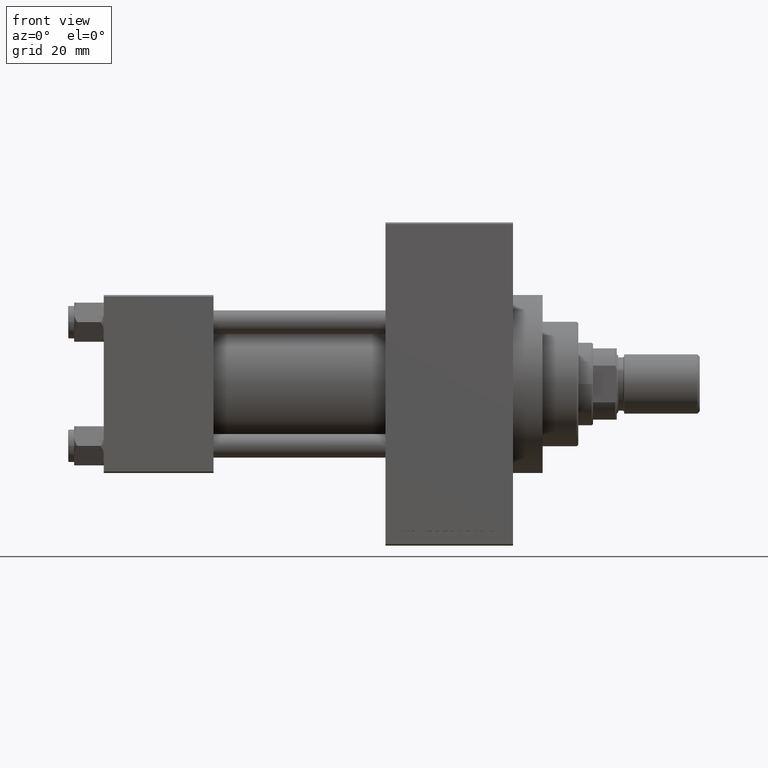
[diagram: clean part render]
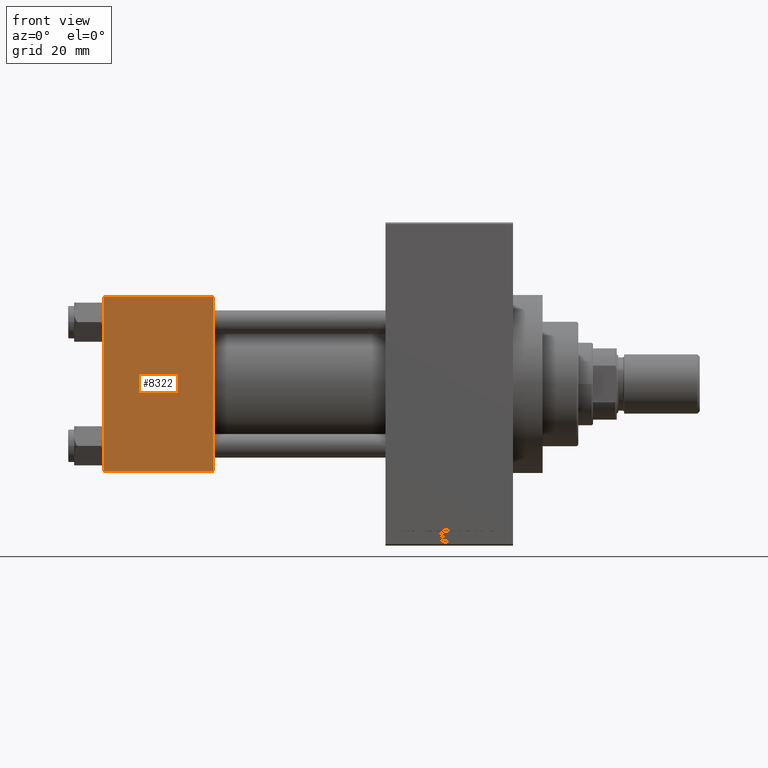
[diagram: same view with one face highlighted and labeled with its STEP entity id]
A machine part, front view. The second image highlights one B-rep face of the part: STEP entity #8322.
In plain terms, the highlighted planar face has unit normal (0, 1, 0).
Its self-contained STEP definition (entity closure, byte-faithful):
#192 = LINE ( 'NONE', #36413, #4661 ) ;
#1182 = DIRECTION ( 'NONE',  ( -1.000000000000000000, 0.000000000000000000, 0.000000000000000000 ) ) ;
#2769 = EDGE_CURVE ( 'NONE', #10734, #8242, #192, .T. ) ;
#4661 = VECTOR ( 'NONE', #47254, 1000.000000000000000 ) ;
#5598 = AXIS2_PLACEMENT_3D ( 'NONE', #46827, #42975, #36700 ) ;
#6116 = ORIENTED_EDGE ( 'NONE', *, *, #8563, .T. ) ;
#6413 = VECTOR ( 'NONE', #33736, 1000.000000000000000 ) ;
#7428 = CARTESIAN_POINT ( 'NONE',  ( 0.000000000000000000, -30.00000000000000000, 29.99999999999999289 ) ) ;
#8242 = VERTEX_POINT ( 'NONE', #12585 ) ;
#8322 = ADVANCED_FACE ( 'NONE', ( #28507 ), #32125, .F. ) ;
#8378 = CARTESIAN_POINT ( 'NONE',  ( 37.00000000000000000, -30.00000000000000000, 29.49999999999999289 ) ) ;
#8563 = EDGE_CURVE ( 'NONE', #10734, #12991, #41957, .T. ) ;
#9801 = EDGE_CURVE ( 'NONE', #12991, #33827, #19003, .T. ) ;
#10734 = VERTEX_POINT ( 'NONE', #8378 ) ;
#11383 = CARTESIAN_POINT ( 'NONE',  ( 0.000000000000000000, -30.00000000000000000, 29.49999999999999289 ) ) ;
#12585 = CARTESIAN_POINT ( 'NONE',  ( 37.00000000000000000, -30.00000000000000000, -29.50000000000001776 ) ) ;
#12991 = VERTEX_POINT ( 'NONE', #11383 ) ;
#14915 = ORIENTED_EDGE ( 'NONE', *, *, #9801, .T. ) ;
#15920 = CARTESIAN_POINT ( 'NONE',  ( 37.00000000000000000, -30.00000000000000000, 29.49999999999999289 ) ) ;
#19003 = LINE ( 'NONE', #7428, #6413 ) ;
#19277 = ORIENTED_EDGE ( 'NONE', *, *, #2769, .F. ) ;
#19664 = DIRECTION ( 'NONE',  ( 1.000000000000000000, 0.000000000000000000, 0.000000000000000000 ) ) ;
#28507 = FACE_OUTER_BOUND ( 'NONE', #42856, .T. ) ;
#31540 = ORIENTED_EDGE ( 'NONE', *, *, #36653, .T. ) ;
#32125 = PLANE ( 'NONE',  #5598 ) ;
#33736 = DIRECTION ( 'NONE',  ( 0.000000000000000000, 0.000000000000000000, -1.000000000000000000 ) ) ;
#33827 = VERTEX_POINT ( 'NONE', #40519 ) ;
#36413 = CARTESIAN_POINT ( 'NONE',  ( 37.00000000000000000, -30.00000000000000000, 29.99999999999999289 ) ) ;
#36653 = EDGE_CURVE ( 'NONE', #33827, #8242, #38481, .T. ) ;
#36700 = DIRECTION ( 'NONE',  ( 0.000000000000000000, -0.000000000000000000, 1.000000000000000000 ) ) ;
#37247 = VECTOR ( 'NONE', #19664, 1000.000000000000000 ) ;
#38012 = CARTESIAN_POINT ( 'NONE',  ( 37.00000000000000000, -30.00000000000000000, -29.50000000000001776 ) ) ;
#38481 = LINE ( 'NONE', #38012, #37247 ) ;
#38742 = VECTOR ( 'NONE', #1182, 1000.000000000000000 ) ;
#40519 = CARTESIAN_POINT ( 'NONE',  ( 0.000000000000000000, -30.00000000000000000, -29.50000000000001776 ) ) ;
#41957 = LINE ( 'NONE', #15920, #38742 ) ;
#42856 = EDGE_LOOP ( 'NONE', ( #14915, #31540, #19277, #6116 ) ) ;
#42975 = DIRECTION ( 'NONE',  ( -0.000000000000000000, 1.000000000000000000, 0.000000000000000000 ) ) ;
#46827 = CARTESIAN_POINT ( 'NONE',  ( 37.00000000000000000, -30.00000000000000000, 29.99999999999999289 ) ) ;
#47254 = DIRECTION ( 'NONE',  ( 0.000000000000000000, 0.000000000000000000, -1.000000000000000000 ) ) ;